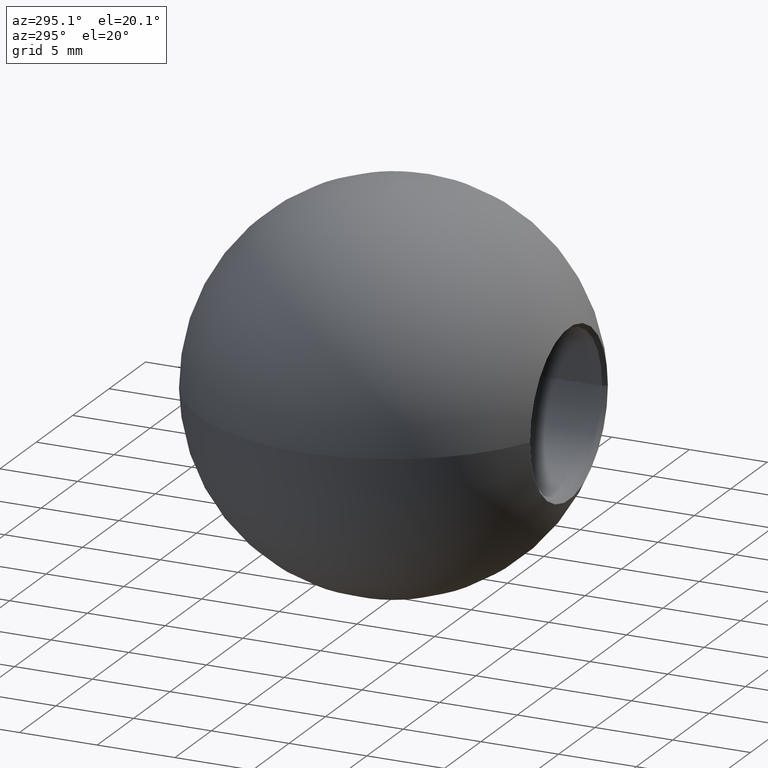
[diagram: clean part render]
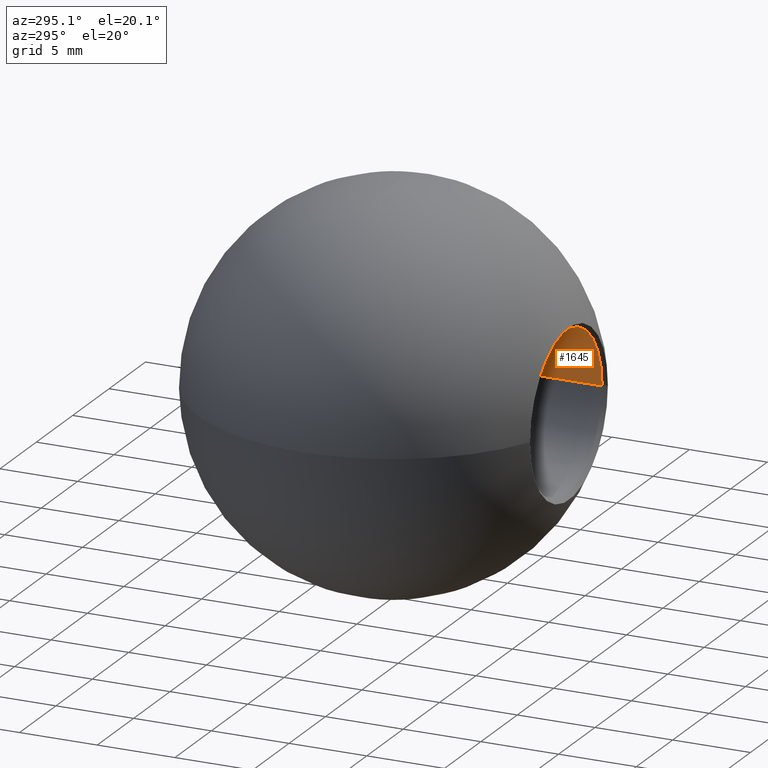
[diagram: same view with one face highlighted and labeled with its STEP entity id]
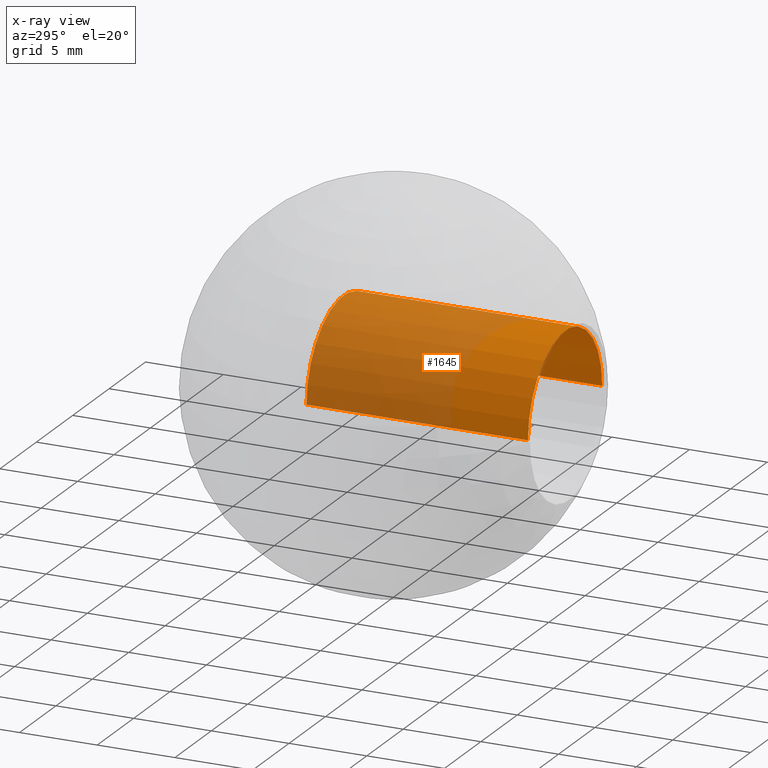
[diagram: x-ray of the same camera — body ghosted, the highlighted face saturated]
A machine part, auxiliary view. The second image highlights one B-rep face of the part: STEP entity #1645.
The next image is the same camera in x-ray: the body ghosted, the highlighted face saturated — about 62% of this face is hidden behind the body in this view.
In plain terms, the highlighted cylindrical surface (partial cylindrical patch) has radius 5.1 mm, axis along (-0, -1, -0).
Its self-contained STEP definition (entity closure, byte-faithful):
#258 = CARTESIAN_POINT ( 'NONE',  ( -5.100000000000003200, -11.04723417478808600, 6.398779525544925700E-016 ) ) ;
#339 = DIRECTION ( 'NONE',  ( -4.583387323490006000E-019, -1.000000000000000000, -0.0000000000000000000 ) ) ;
#359 = EDGE_LOOP ( 'NONE', ( #10601, #1404, #9693, #4820 ) ) ;
#1404 = ORIENTED_EDGE ( 'NONE', *, *, #10371, .F. ) ;
#1645 = ADVANCED_FACE ( 'NONE', ( #9594 ), #9935, .F. ) ;
#2239 = VERTEX_POINT ( 'NONE', #10583 ) ;
#2806 = CARTESIAN_POINT ( 'NONE',  ( 5.100000000000002300, 6.267154982252446200, 0.0000000000000000000 ) ) ;
#2988 = CARTESIAN_POINT ( 'NONE',  ( -2.856754284362197900E-018, 6.267154982252446200, 0.0000000000000000000 ) ) ;
#3462 = CARTESIAN_POINT ( 'NONE',  ( -4.261282526024181400E-018, 3.202765825211907100, 0.0000000000000000000 ) ) ;
#4443 = VECTOR ( 'NONE', #11667, 1000.000000000000000 ) ;
#4612 = VERTEX_POINT ( 'NONE', #6878 ) ;
#4820 = ORIENTED_EDGE ( 'NONE', *, *, #11982, .T. ) ;
#4842 = CARTESIAN_POINT ( 'NONE',  ( -5.100000000000000500, 3.202765825211907100, 6.245698675651501800E-016 ) ) ;
#5052 = DIRECTION ( 'NONE',  ( -4.583387323490006000E-019, -1.000000000000000000, -0.0000000000000000000 ) ) ;
#5401 = CARTESIAN_POINT ( 'NONE',  ( -5.100000000000002300, 6.267154982252446200, 6.245698675651503800E-016 ) ) ;
#5477 = VECTOR ( 'NONE', #5052, 1000.000000000000000 ) ;
#5607 = CIRCLE ( 'NONE', #10855, 5.100000000000001400 ) ;
#6238 = CIRCLE ( 'NONE', #9376, 5.100000000000003200 ) ;
#6761 = EDGE_CURVE ( 'NONE', #4612, #2239, #8552, .T. ) ;
#6878 = CARTESIAN_POINT ( 'NONE',  ( 5.100000000000000500, 3.202765825211907100, 0.0000000000000000000 ) ) ;
#7760 = DIRECTION ( 'NONE',  ( 1.000000000000000000, 0.0000000000000000000, 0.0000000000000000000 ) ) ;
#8151 = DIRECTION ( 'NONE',  ( 1.000000000000000000, 0.0000000000000000000, 0.0000000000000000000 ) ) ;
#8552 = LINE ( 'NONE', #2806, #5477 ) ;
#8615 = DIRECTION ( 'NONE',  ( -4.583387323490006000E-019, -1.000000000000000000, -0.0000000000000000000 ) ) ;
#8684 = LINE ( 'NONE', #5401, #4443 ) ;
#9373 = EDGE_CURVE ( 'NONE', #12449, #11289, #8684, .T. ) ;
#9376 = AXIS2_PLACEMENT_3D ( 'NONE', #13108, #8615, #11750 ) ;
#9594 = FACE_OUTER_BOUND ( 'NONE', #359, .T. ) ;
#9693 = ORIENTED_EDGE ( 'NONE', *, *, #6761, .T. ) ;
#9935 = CYLINDRICAL_SURFACE ( 'NONE', #10955, 5.100000000000002300 ) ;
#10371 = EDGE_CURVE ( 'NONE', #4612, #12449, #5607, .T. ) ;
#10583 = CARTESIAN_POINT ( 'NONE',  ( 5.100000000000003200, -11.04723417478808600, 0.0000000000000000000 ) ) ;
#10601 = ORIENTED_EDGE ( 'NONE', *, *, #9373, .F. ) ;
#10855 = AXIS2_PLACEMENT_3D ( 'NONE', #3462, #339, #7760 ) ;
#10955 = AXIS2_PLACEMENT_3D ( 'NONE', #2988, #13306, #8151 ) ;
#11289 = VERTEX_POINT ( 'NONE', #258 ) ;
#11667 = DIRECTION ( 'NONE',  ( -4.583387323490006000E-019, -1.000000000000000000, -0.0000000000000000000 ) ) ;
#11750 = DIRECTION ( 'NONE',  ( 1.000000000000000000, 0.0000000000000000000, 0.0000000000000000000 ) ) ;
#11982 = EDGE_CURVE ( 'NONE', #2239, #11289, #6238, .T. ) ;
#12449 = VERTEX_POINT ( 'NONE', #4842 ) ;
#13108 = CARTESIAN_POINT ( 'NONE',  ( -1.079260946199743600E-017, -11.04723417478808600, 0.0000000000000000000 ) ) ;
#13306 = DIRECTION ( 'NONE',  ( -4.583387323490006000E-019, -1.000000000000000000, -0.0000000000000000000 ) ) ;